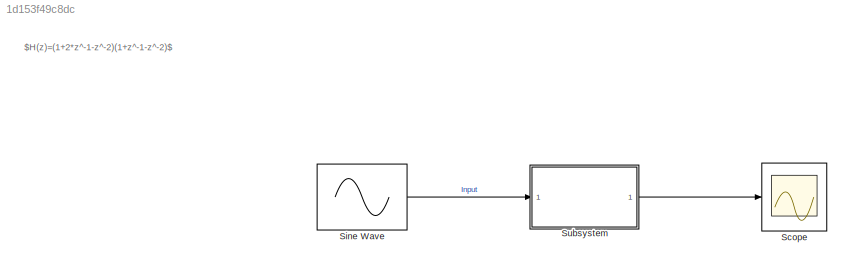
MODEL slx_1d153f49c8dc
KIND model
CONFIG AbsTol = auto
CONFIG EnableMultiTasking = off
CONFIG FixedStep = auto
CONFIG MaxStep = auto
CONFIG MinStep = auto
CONFIG RelTol = 1e-3
CONFIG SampleTimeConstraint = Unconstrained
CONFIG SolverName = VariableStepAuto
CONFIG StartTime = 0.0
CONFIG StopTime = 10.0
BLOCK [Scope] Scope
  Floating = off
  NumInputPorts = 1
  Ports = [1]
  ScopeSpecificationString = Simulink.scopes.TimeScopeBlockCfg('CurrentConfiguration', extmgr.ConfigurationSet(extmgr.Configuration('Core','General UI',true),extmgr.Configuration('Core','Source UI',true),extmgr.Configuration('Sources','WiredSimulink',true),extmgr.Configuration('Visuals','Time Domain',true,'SerializedDisplays',{struct('MinYLimReal','-2.73796','MaxYLimReal','2.74215','YLabelReal','','MinYLimMag','0.00000','MaxY...<+1355ch>
BLOCK [Sin] Sine Wave
  Ports = [0, 1]
  SampleTime = 0
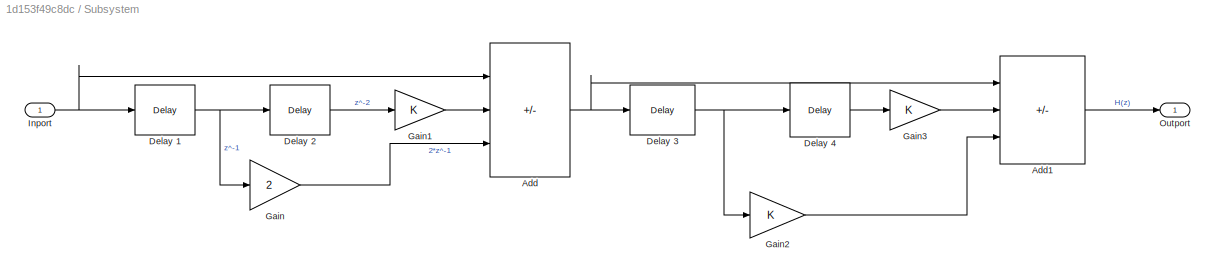
BLOCK [SubSystem] Subsystem
  Ports = [1, 1]
  RequestExecContextInheritance = off
BLOCK [Sum] Subsystem/Add
  IconShape = rectangular
  Inputs = +-+
  Ports = [3, 1]
BLOCK [Sum] Subsystem/Add1
  IconShape = rectangular
  Inputs = +-+
  Ports = [3, 1]
BLOCK [Delay] Subsystem/Delay 1
  DelayLength = 1
  InputPortMap = u0
  Ports = [1, 1]
BLOCK [Delay] Subsystem/Delay 2
  DelayLength = 1
  InputPortMap = u0
  Ports = [1, 1]
BLOCK [Delay] Subsystem/Delay 3
  DelayLength = 1
  InputPortMap = u0
  Ports = [1, 1]
BLOCK [Delay] Subsystem/Delay 4
  DelayLength = 1
  InputPortMap = u0
  Ports = [1, 1]
BLOCK [Gain] Subsystem/Gain
  Gain = 2
BLOCK [Gain] Subsystem/Gain1
BLOCK [Gain] Subsystem/Gain2
BLOCK [Gain] Subsystem/Gain3
BLOCK [Inport] Subsystem/Inport
BLOCK [Outport] Subsystem/Outport
ANNOTATION (root): $H(z)=(1+2*z^-1-z^-2)(1+z^-1-z^-2)$
LINE Sine Wave:1 -> Subsystem:1
LINE Subsystem/Add1:1 -> Subsystem/Outport:1
NET Subsystem/Add:1 -> Subsystem/Add1:1, Subsystem/Delay 3:1
NET Subsystem/Delay 1:1 -> Subsystem/Delay 2:1, Subsystem/Gain:1
LINE Subsystem/Delay 2:1 -> Subsystem/Gain1:1
NET Subsystem/Delay 3:1 -> Subsystem/Delay 4:1, Subsystem/Gain2:1
LINE Subsystem/Delay 4:1 -> Subsystem/Gain3:1
LINE Subsystem/Gain1:1 -> Subsystem/Add:2
LINE Subsystem/Gain2:1 -> Subsystem/Add1:3
LINE Subsystem/Gain3:1 -> Subsystem/Add1:2
LINE Subsystem/Gain:1 -> Subsystem/Add:3
NET Subsystem/Inport:1 -> Subsystem/Add:1, Subsystem/Delay 1:1
LINE Subsystem:1 -> Scope:1
note: NET lines group one-source signal fan-out (src -> all destinations, sorted); 1:1 wires keep LINE
